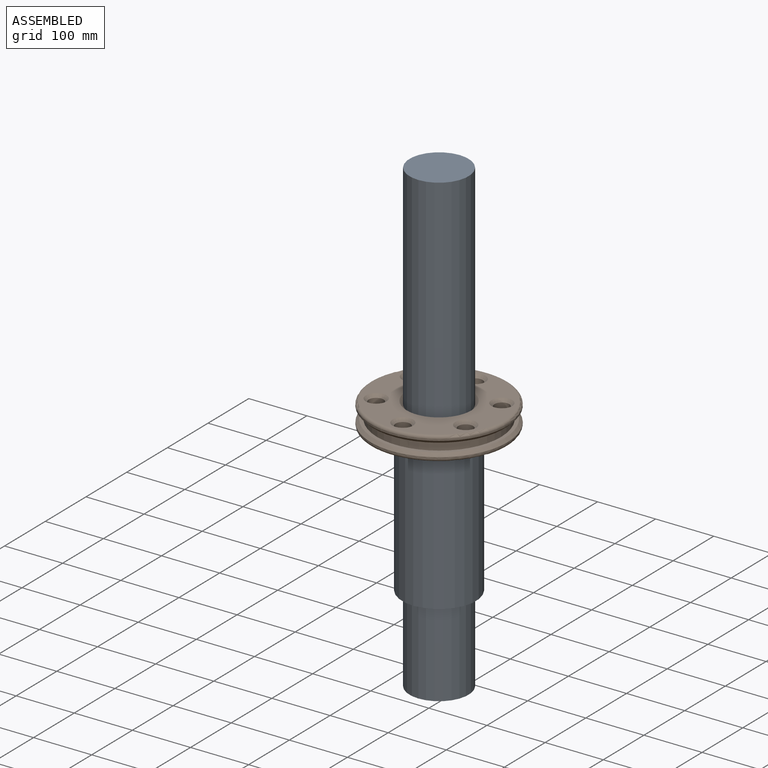
[diagram: assembled view]
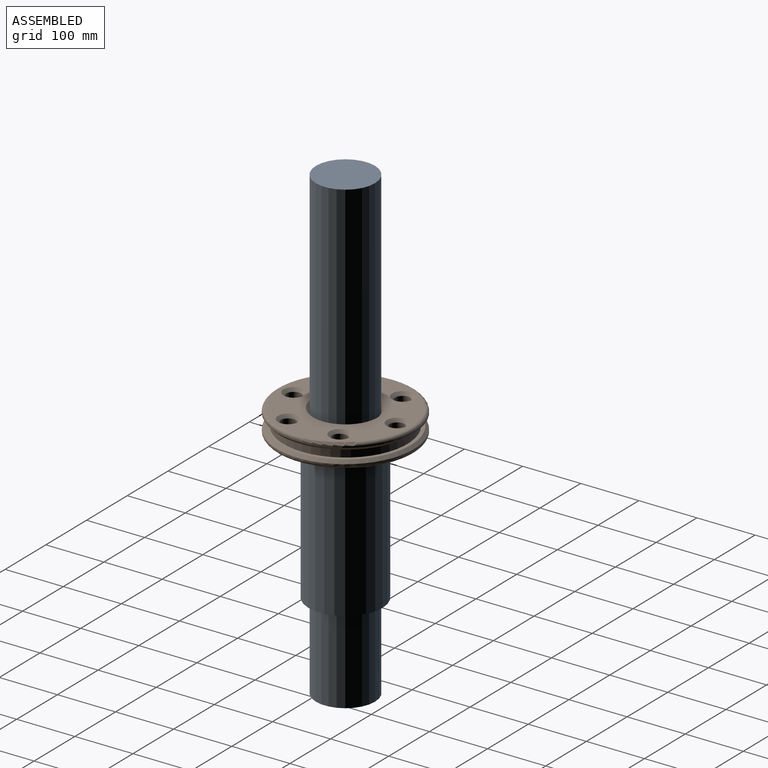
[diagram: assembled view, second angle]
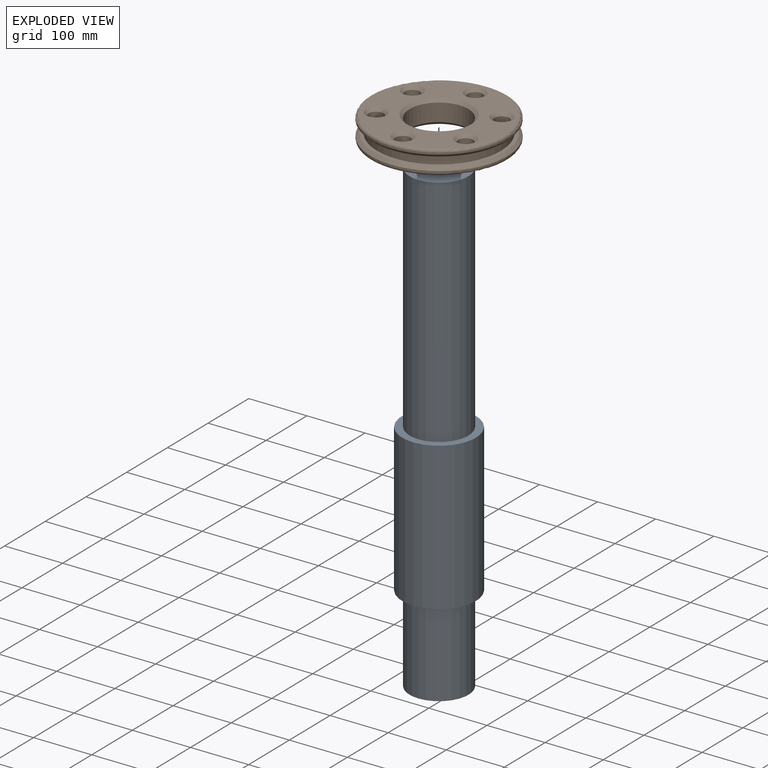
[diagram: exploded view]
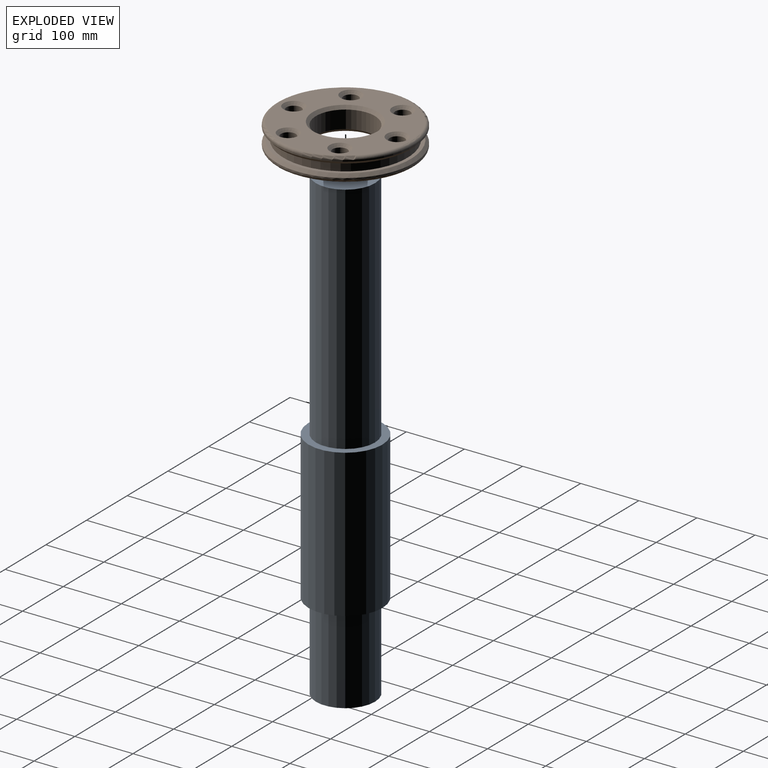
[diagram: exploded view, second angle]
ASSEMBLY  parts=2 mates=2
PART A: 7 faces, bbox 127x806.3x127 mm
  f0: cylinder r=50.8mm len=149.13mm, axis (0,1,0), area 47601.1mm2, adj f1,f3
  f1: plane 101.6x101.6mm, normal (0,1,0), area 8107.3mm2, adj f0
  f2: cylinder r=63.5mm len=254mm, axis (0,-1,0), area 101341.5mm2, adj f3,f4
  f3: plane 127x127mm, normal (0,1,0), area 4560.4mm2, adj f0,f2
  f4: plane 127x127mm, normal (0,-1,0), area 4560.4mm2, adj f2,f6
  f5: plane 101.6x101.6mm, normal (0,-1,0), area 8107.3mm2, adj f6
  f6: cylinder r=50.8mm len=403.13mm, axis (0,1,0), area 128674.3mm2, adj f4,f5
PART B: 32 faces, bbox 255.3x255.3x40.5 mm
  f0: cylinder r=117.91mm len=235.82mm, axis (0,0,-1), area 1881.8mm2, adj f14,f30
  f1: cylinder r=117.91mm len=235.82mm, axis (0,0,-1), area 1881.8mm2, adj f13,f31
  f2: plane 225.66x225.66mm, normal (0,0,1), area 24227mm2, adj f6,f14,f21,f22,f23,f24,f25,f26
  f3: cylinder r=50.8mm len=101.6mm, axis (0,0,-1), area 9699mm2, adj f5,f6
  f4: plane 225.66x225.66mm, normal (0,0,-1), area 24227mm2, adj f5,f13,f15,f16,f17,f18,f19,f20
  f5: cone r=50.8mm half-angle=45deg, axis (0,0,-1), area 2407.8mm2, adj f3,f4
  f6: cone r=55.88mm half-angle=45deg, axis (0,0,1), area 2407.8mm2, adj f2,f3
  f7: cylinder r=12.7mm len=30.39mm, axis (0,0,1), area 2424.8mm2, adj f15,f24
  f8: cylinder r=12.7mm len=30.39mm, axis (0,0,1), area 2424.8mm2, adj f16,f25
  f9: cylinder r=12.7mm len=30.39mm, axis (0,0,1), area 2424.8mm2, adj f20,f26
  f10: cylinder r=12.7mm len=30.39mm, axis (0,0,1), area 2424.8mm2, adj f19,f21
  f11: cylinder r=12.7mm len=30.39mm, axis (0,0,1), area 2424.8mm2, adj f18,f22
  f12: cylinder r=12.7mm len=30.39mm, axis (0,0,1), area 2424.8mm2, adj f17,f23
  f13: torus R=112.83mm, axis (0,0,-1), area 5819.3mm2, adj f1,f4
  f14: torus R=112.83mm, axis (0,0,-1), area 5819.3mm2, adj f0,f2
  f15: cone r=12.7mm half-angle=45deg, axis (0,0,-1), area 687.9mm2, adj f4,f7
  f16: cone r=12.7mm half-angle=45deg, axis (0,0,-1), area 687.9mm2, adj f4,f8
  f17: cone r=12.7mm half-angle=45deg, axis (0,0,-1), area 687.9mm2, adj f4,f12
  f18: cone r=12.7mm half-angle=45deg, axis (0,0,-1), area 687.9mm2, adj f4,f11
  f19: cone r=12.7mm half-angle=45deg, axis (0,0,-1), area 687.9mm2, adj f4,f10
  f20: cone r=12.7mm half-angle=45deg, axis (0,0,-1), area 687.9mm2, adj f4,f9
  f21: cone r=12.7mm half-angle=45deg, axis (0,0,1), area 687.9mm2, adj f2,f10
  f22: cone r=12.7mm half-angle=45deg, axis (0,0,1), area 687.9mm2, adj f2,f11
  f23: cone r=12.7mm half-angle=45deg, axis (0,0,1), area 687.9mm2, adj f2,f12
  f24: cone r=12.7mm half-angle=45deg, axis (0,0,1), area 687.9mm2, adj f2,f7
  f25: cone r=12.7mm half-angle=45deg, axis (0,0,1), area 687.9mm2, adj f2,f8
  f26: cone r=12.7mm half-angle=45deg, axis (0,0,1), area 687.9mm2, adj f2,f9
  f27: plane 225.66x225.66mm, normal (0,0,-1), area 4242.5mm2, adj f29,f30
  f28: plane 225.66x225.66mm, normal (0,0,1), area 4242.5mm2, adj f29,f31
  f29: cylinder r=106.68mm len=213.36mm, axis (0,0,1), area 10152.7mm2, adj f27,f28
  f30: cone r=112.83mm half-angle=45deg, axis (0,0,1), area 5207.9mm2, adj f0,f27
  f31: cone r=112.83mm half-angle=45deg, axis (0,0,-1), area 5207.9mm2, adj f1,f28
PLACE A rot(axis=(-1,0,0),90deg) t=(-414.32,-254.44,-612.36)mm
PLACE B t=(-414.32,-254.44,-238.58)mm
MATE parallel B.f0 <-> A.f2  axis (0,0,-1) through (-414.32,-254.44,-209.22)mm
MATE slider A.f0 <-> B.f0  axis (0,0,-1) through (-414.32,-254.44,-7.66)mm
